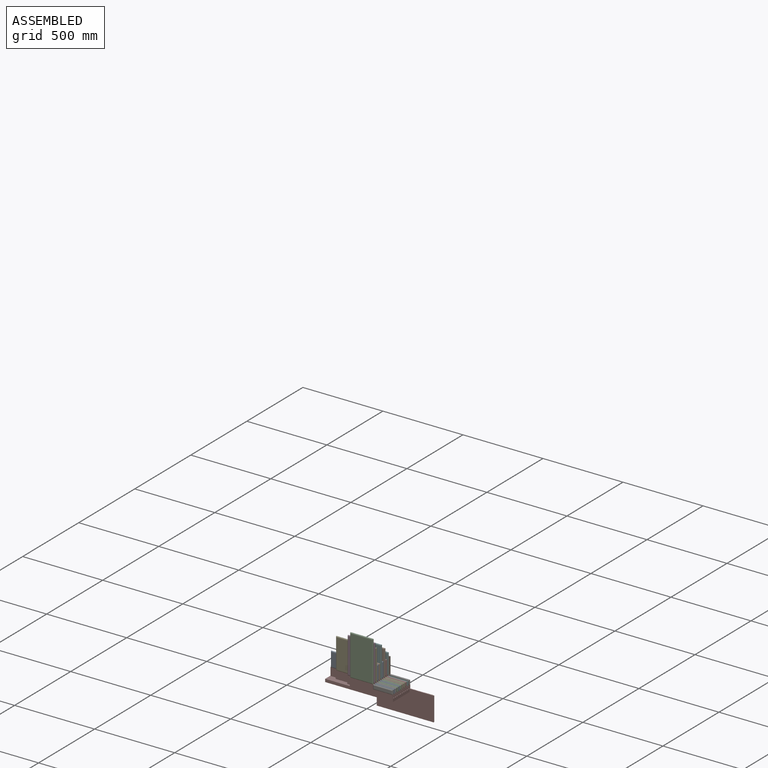
[diagram: assembled view]
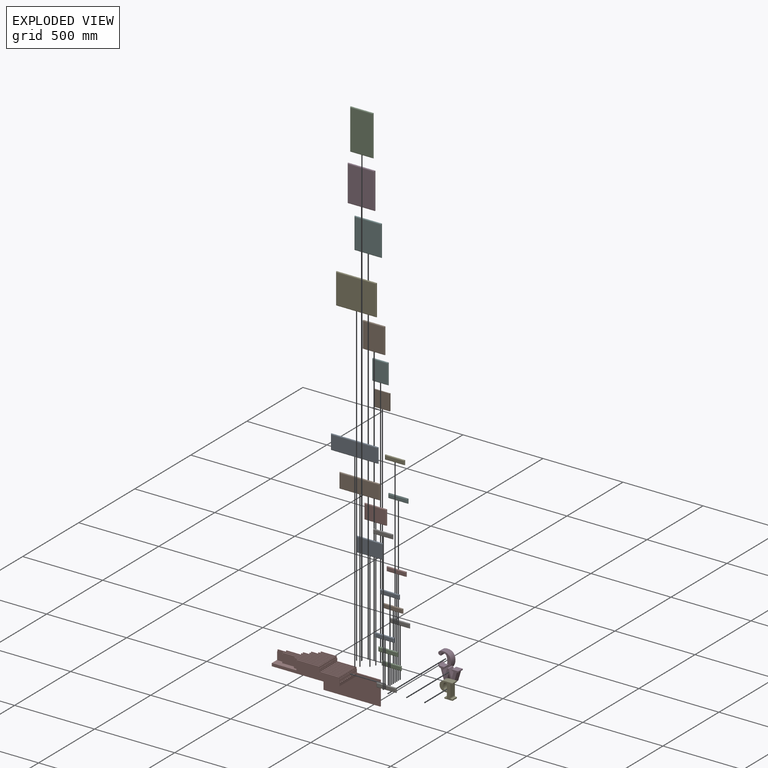
[diagram: exploded view]
GUIDED TOUR — MATED ASSEMBLY (Onshape document 578d2587e4b0dbf8509dc60d, AutoMate assembly 578d2587e4b0dbf8509dc60d_311dc6da7338ea4c76ca1583_a7b92a9273458ecb3439c818_default)

This assembly has 26 components, labeled P0..P25 below (a component is one placed occurrence of a part; the same part can appear more than once), held together by 25 mates. A mate is a constraint between two components; its type names the relative motion it leaves free:
  FASTENED — locks the two components together rigidly (no relative motion).
Axis/direction vectors are unit vectors and 'through' points are millimeter coordinates, both in the assembly's world frame.

MATES
  1. FASTENED "Fastened 22": P0 <-> P7, direction (0.000, 0.000, 1.000) through (-380.98, -88.99, -85.35) mm
  2. FASTENED "Fastened 8": P15 <-> P7, direction (0.000, 0.000, 1.000) through (-380.98, 16.01, -85.35) mm
  3. FASTENED "Fastened 20": P7 <-> P22, direction (0.000, 0.000, 1.000) through (-380.98, -73.99, -85.35) mm
  4. FASTENED "Fastened 1": P4 <-> P7, direction (0.000, -1.000, 0.000) through (-180.15, 46.01, -137.35) mm
  5. FASTENED "Fastened 17": P7 <-> P9, direction (0.000, 0.000, 1.000) through (-385.98, -43.99, -57.35) mm
  6. FASTENED "Fastened 6": P5 <-> P7, direction (0.000, 0.000, -1.000) through (-380.98, 31.01, -85.35) mm
  7. FASTENED "Fastened 14": P7 <-> P18, direction (0.000, 0.000, 1.000) through (-380.98, -28.99, -85.35) mm
  8. FASTENED "Fastened 23": P3 <-> P7, direction (0.000, 0.000, 1.000) through (-385.98, -88.99, -57.35) mm
  9. FASTENED "Fastened 21": P20 <-> P7, direction (0.000, 0.000, 1.000) through (-385.98, -73.99, -57.35) mm
  10. FASTENED "Fastened 4": P6 <-> P7, direction (0.000, 0.000, 1.000) through (-380.98, 46.01, -85.35) mm
  11. FASTENED "Fastened 13": P7 <-> P16, direction (0.000, 0.000, 1.000) through (-385.98, -13.99, -57.35) mm
  12. FASTENED "Fastened 11": P7 <-> P25, direction (0.000, 0.000, 1.000) through (-385.98, 1.01, -57.35) mm
  13. FASTENED "Fastened 10": P12 <-> P7, direction (0.000, 0.000, 1.000) through (-380.98, 1.01, -85.35) mm
  14. FASTENED "Fastened 2": P19 <-> P7, direction (0.000, -1.000, 0.000) through (-300.94, 46.01, -155.95) mm
  15. FASTENED "Fastened 3": P11 <-> P7, direction (0.000, -1.000, 0.000) through (-414.58, 46.01, -136.05) mm
  16. FASTENED "Fastened 16": P24 <-> P7, direction (0.000, 0.000, 1.000) through (-380.98, -43.99, -85.35) mm
  17. FASTENED "Fastened 18": P10 <-> P7, direction (0.000, 0.000, 1.000) through (-380.98, -58.99, -85.35) mm
  18. FASTENED "Fastened 9": P23 <-> P7, direction (0.000, 0.000, 1.000) through (-385.98, 16.01, -57.35) mm
  19. FASTENED "Fastened 7": P21 <-> P7, direction (0.000, 0.000, 1.000) through (-385.98, 31.01, -57.35) mm
  20. FASTENED "Fastened 19": P7 <-> P8, direction (0.000, 0.000, 1.000) through (-385.98, -58.99, -57.35) mm
  21. FASTENED "Fastened 5": P17 <-> P7, direction (0.000, 0.000, -1.000) through (-385.98, 46.01, -57.35) mm
  22. FASTENED "Fastened 25": P7 <-> P2, direction (0.000, 0.000, 1.000) through (-385.98, -103.99, -57.35) mm
  23. FASTENED "Fastened 12": P1 <-> P7, direction (0.000, 0.000, 1.000) through (-380.98, -13.99, -85.35) mm
  24. FASTENED "Fastened 15": P13 <-> P7, direction (0.000, 0.000, 1.000) through (-385.98, -28.99, -57.35) mm
  25. FASTENED "Fastened 24": P14 <-> P7, direction (0.000, 0.000, 1.000) through (-380.98, -103.99, -85.35) mm

ASSEMBLY ORDER
  1. P22 — the base component [order verified]
  2. P18 [order verified]
  3. P7 [order verified]
  4. P10 [order verified]
  5. P6 [order verified]
  6. P1 [order verified]
  7. P24 [order verified]
  8. P15 [order verified]
  9. P0 [order verified]
  10. P16 [order verified]
  11. P23 [order verified]
  12. P9 [order verified]
  13. P8 [order verified]
  14. P17 [order verified]
  15. P21 [order verified]
  16. P25 [order verified]
  17. P20 [order verified]
  18. P13 [order verified]
  19. P14 [order verified]
  20. P3 [order verified]
  21. P12 [order verified]
  22. P2 [order verified]
  23. P5 [order verified]
  24. P19 [order verified]
  25. P11 [order verified]
  26. P4 [order verified]
(P0, P1, P2, P3, P6, P8, P9, P10, P12, P13, P14, P16, P17, P18, P20, P21, P23, P24, P25 verified with a relaxed clearance tolerance: the source model stores slight part interference there.)
Order-tag legend:
  [order verified] — this step's position reverses a verified removal order: the component was checked to insert without passing through the ones already placed.

Of the 26 components, 1 carries the full construction recipe — the FeatureScript program that regenerates the part's solid from scratch; the rest are supplied as boundary geometry only.
Because this assembly has more than 12 components, the tour below covers the 12 most significant ones individually (every recipe-attached component first, then the largest by part volume), in assembly order; the remaining 14 are summarized together in a grouped section at the end.
Each toured component is shown spotlighted twice — in the assembled view, then in the exploded view, where a leader line traces a displaced component back to its assembled socket (saturated green if recipe-attached, orange if geometry-only; every other component desaturated gray) — followed by its recipe or geometry summary and the mates that hold it.
NOTE — document 2 of 2 of this assembly tour. The two overview renders and the header above are repeated from document 1; the component sections below continue where the previous document stopped.
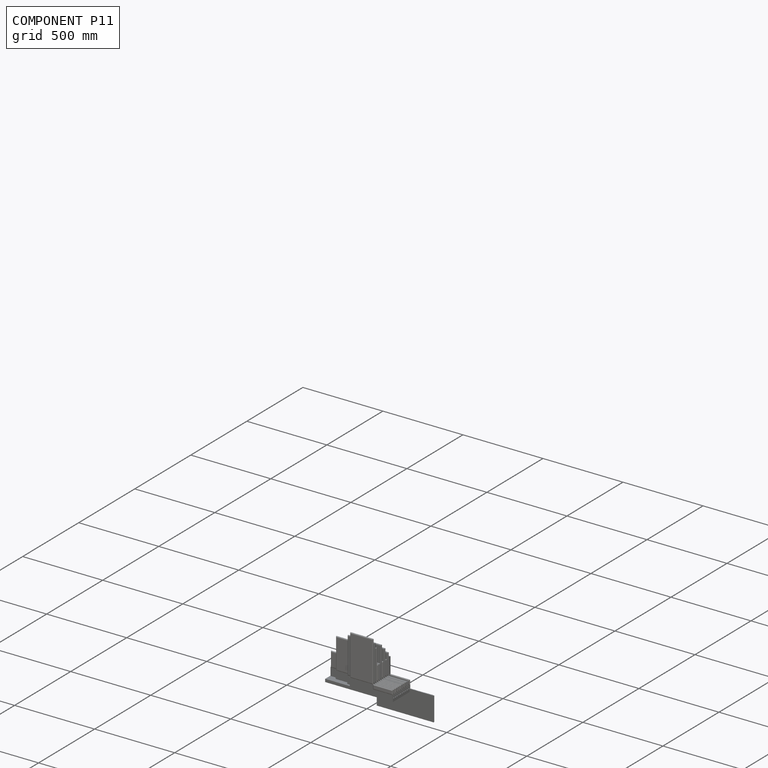
[diagram: component P11 — assembled]
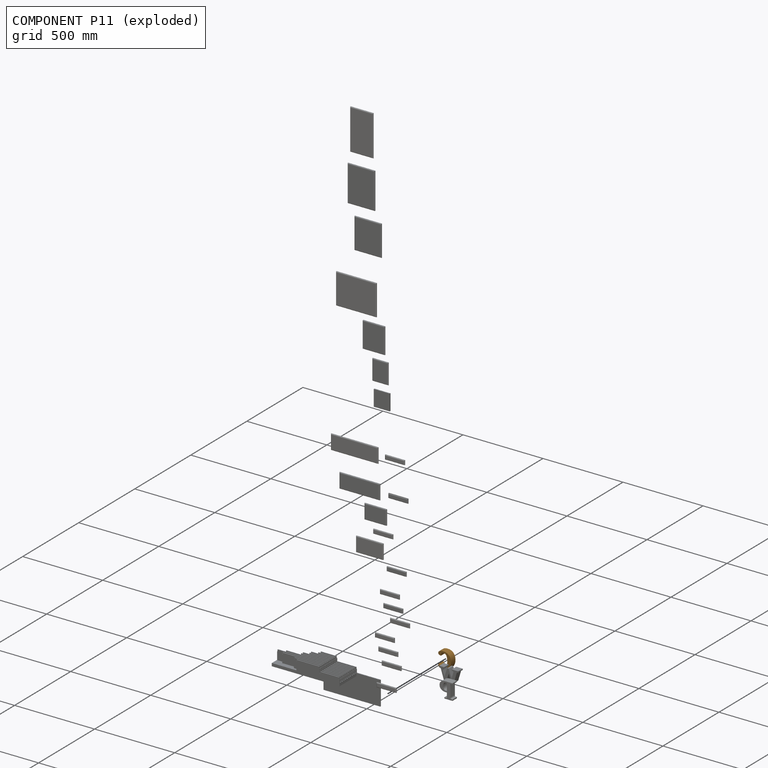
[diagram: component P11 — exploded]
COMPONENT P11 — geometry summary (no construction recipe available for this part):
  bounding box: 101.9 x 79.6 x 40.0 mm
  B-rep topology: 1 solid, 40 faces, 228 edges
  volume: 128304 mm^3 (40% of its bounding box)
  symmetry: mirror-symmetric across its y mid-plane
Held by: FASTENED mate "Fastened 3" to P7.
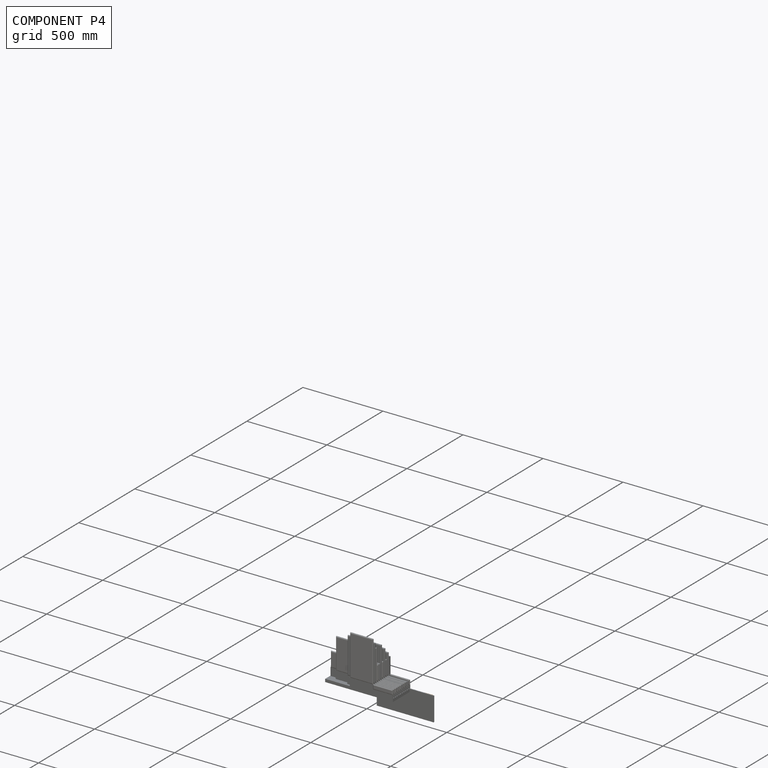
[diagram: component P4 — assembled]
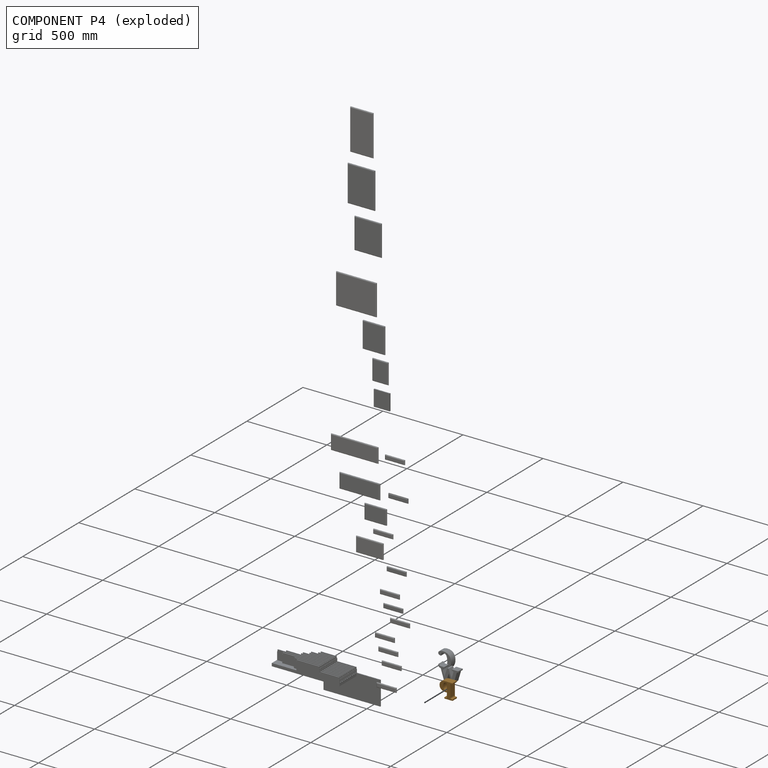
[diagram: component P4 — exploded]
COMPONENT P4 — geometry summary (no construction recipe available for this part):
  bounding box: 99.2 x 80.6 x 40.0 mm
  B-rep topology: 1 solid, 44 faces, 252 edges
  volume: 159642 mm^3 (50% of its bounding box)
  symmetry: mirror-symmetric across its y mid-plane
Held by: FASTENED mate "Fastened 1" to P7.
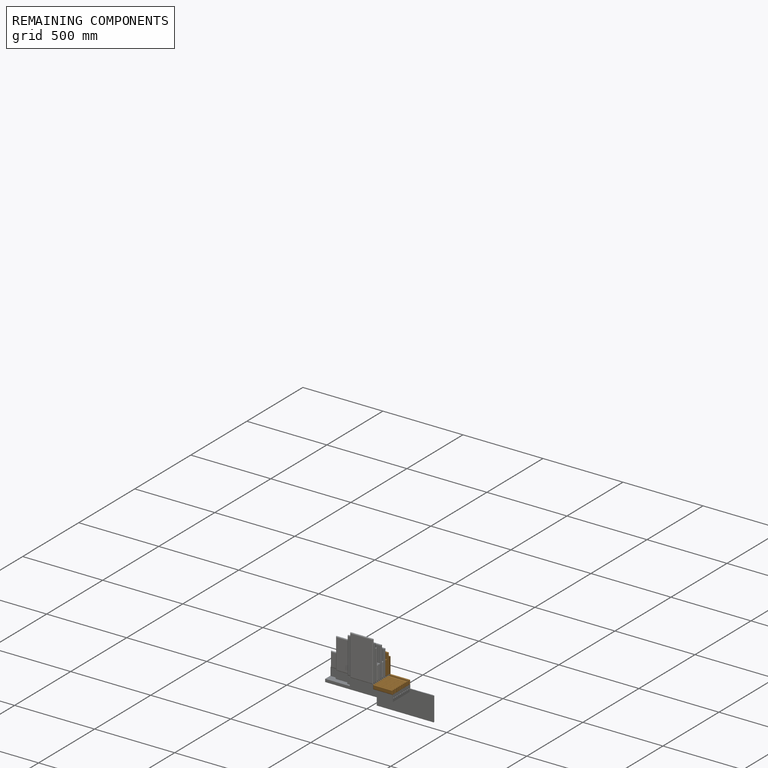
[diagram: remaining components — assembled]
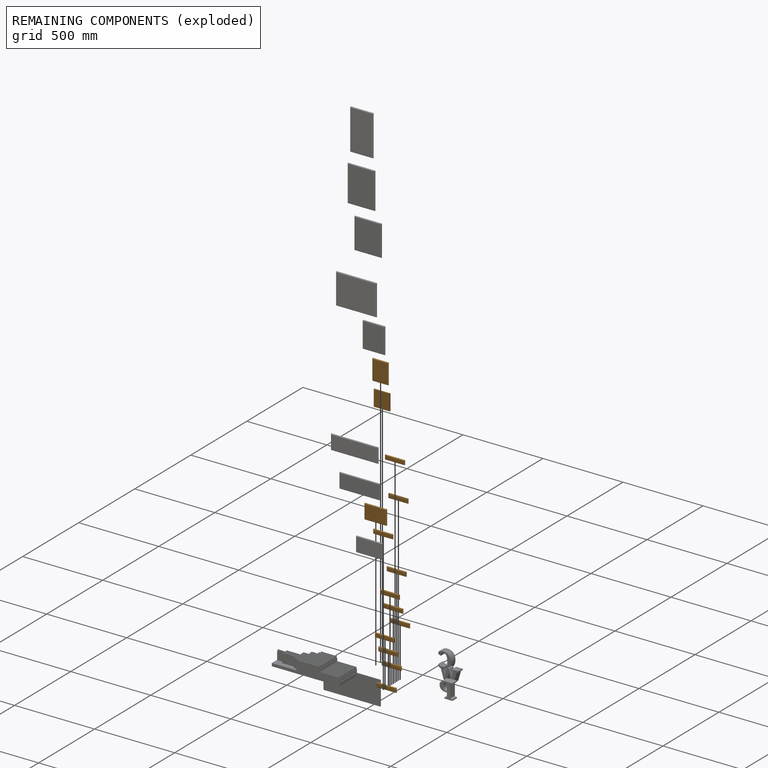
[diagram: remaining components — exploded]
REMAINING COMPONENTS (grouped) — the 14 components below fall outside the per-component tour by the significance rule stated above; both spotlight views highlight the whole group.
  P22: bounding box 123.0 x 28.0 x 10.0 mm, volume 16378 mm^3. Held by: FASTENED mate "Fastened 20" to P7.
  P18: bounding box 123.0 x 28.0 x 10.0 mm, volume 16378 mm^3. Held by: FASTENED mate "Fastened 14" to P7.
  P10: bounding box 123.0 x 28.0 x 10.0 mm, volume 16378 mm^3. Held by: FASTENED mate "Fastened 18" to P7.
  P6: bounding box 123.0 x 28.0 x 10.0 mm, volume 16378 mm^3. Held by: FASTENED mate "Fastened 4" to P7.
  P1: bounding box 123.0 x 28.0 x 10.0 mm, volume 16378 mm^3. Held by: FASTENED mate "Fastened 12" to P7.
  P24: bounding box 123.0 x 28.0 x 10.0 mm, volume 16378 mm^3. Held by: FASTENED mate "Fastened 16" to P7.
  P15: bounding box 123.0 x 28.0 x 10.0 mm, volume 16378 mm^3. Held by: FASTENED mate "Fastened 8" to P7.
  P0: bounding box 123.0 x 28.0 x 10.0 mm, volume 16378 mm^3. Held by: FASTENED mate "Fastened 22" to P7.
  P23: bounding box 139.0 x 93.0 x 10.0 mm, volume 63897 mm^3. Held by: FASTENED mate "Fastened 9" to P7.
  P17: bounding box 100.0 x 100.0 x 10.0 mm, volume 51641 mm^3. Held by: FASTENED mate "Fastened 5" to P7.
  P21: bounding box 128.0 x 100.0 x 10.0 mm, volume 63693 mm^3. Held by: FASTENED mate "Fastened 7" to P7.
  P14: bounding box 123.0 x 28.0 x 10.0 mm, volume 16378 mm^3. Held by: FASTENED mate "Fastened 24" to P7.
  P12: bounding box 123.0 x 28.0 x 10.0 mm, volume 16378 mm^3. Held by: FASTENED mate "Fastened 10" to P7.
  P5: bounding box 123.0 x 28.0 x 10.0 mm, volume 16378 mm^3. Held by: FASTENED mate "Fastened 6" to P7.
PROVENANCE & LICENSES
Assembly (occurrences, transforms, mates, per-part STEP geometry): AutoMate dataset, Zenodo record 7776208, CC0.
Construction recipes: CADFS (HuggingFace VladPyatov/CADFS, CC-BY-4.0, layered over the ABC dataset), FeatureScript reconstruction programs keyed by ABC model id.
Join: ABC meta listings map ABC model id -> Onshape documentId; within a shared document, parts are matched by geometric signature (bounding-box dims + volume at 0.1% relative tolerance, exact B-rep face/solid counts).
Verification: 1 of this assembly's 26 components carries a recipe attachment, and every attachment is mesh-verified: the CADFS STEP and the AutoMate member STEP were compared as meshes in their shared local frame (symmetric sampled-point-to-mesh distance); worst across the 1 attachment: below the mesh-comparison resolution (tessellation chordal tolerance ~0.945 mm) on a 630 mm part.
Renders: orthographic iso camera (az 35 / el 25); the floor grid conveys scale (grid pitch printed in each image; no ruler). In the exploded view each component is displaced by its stored offset vector: the offsets alone carry the explosion direction (mate normal/axis signs are not orientation cues and do not encode it), and separation distances are assigned per mate-chain, not proportionally to assembly-order depth.
